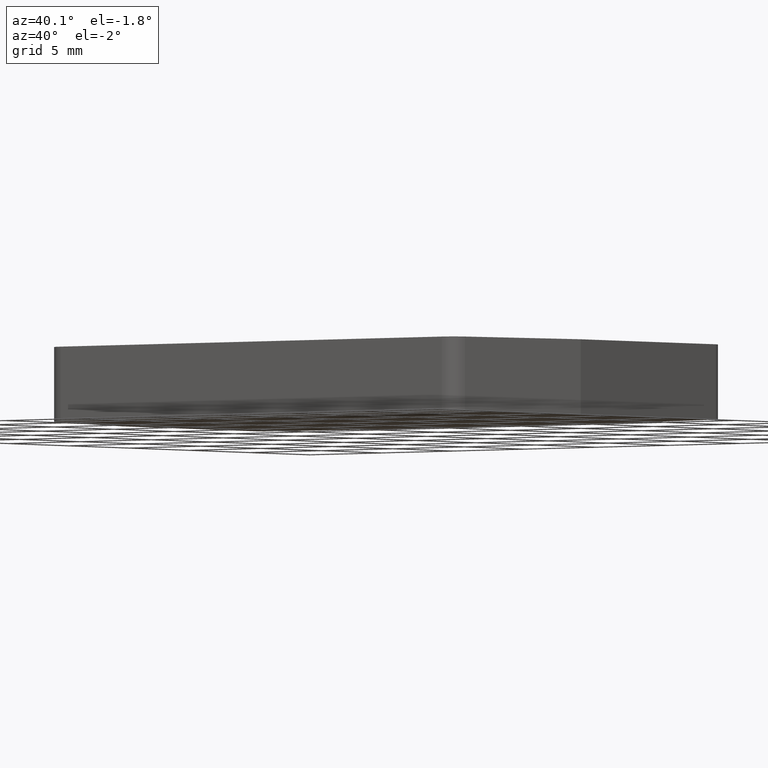
[diagram: clean part render]
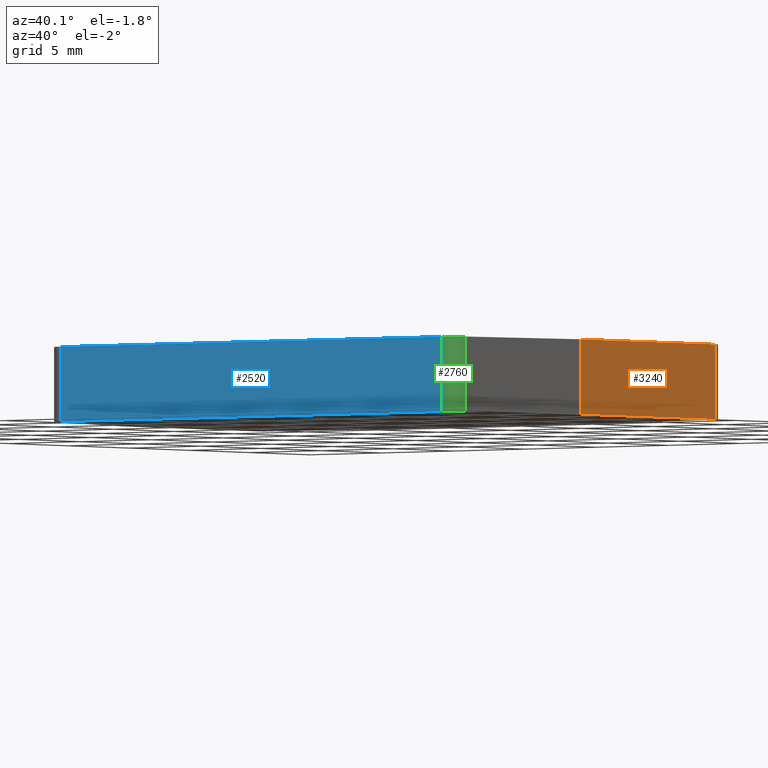
[diagram: same view with three faces highlighted in distinct colors, each labeled with its STEP entity id]
A machine part, auxiliary view with three faces highlighted in distinct colors.
Their STEP definitions:

[orange] entity #3240 — the highlighted planar face has unit normal (1, 0, 0).
#870=CARTESIAN_POINT('',(-35.3523277467458,8.31931566140769,0.));
#880=VERTEX_POINT('',#870);
#910=CARTESIAN_POINT('',(-35.3523277467458,19.5014747753878,0.));
#920=DIRECTION('',(0.,-1.,0.));
#930=VECTOR('',#920,1.);
#940=LINE('',#910,#930);
#950=CARTESIAN_POINT('',(-35.3523277467458,19.5014747753878,0.));
#960=VERTEX_POINT('',#950);
#970=EDGE_CURVE('',#960,#880,#940,.T.);
#1260=CARTESIAN_POINT('',(-35.3523277467458,19.5014747753878,4.));
#1270=VERTEX_POINT('',#1260);
#1320=CARTESIAN_POINT('',(-35.3523277467458,19.5014747753878,4.));
#1330=DIRECTION('',(0.,-1.,0.));
#1340=VECTOR('',#1330,1.);
#1350=LINE('',#1320,#1340);
#1360=CARTESIAN_POINT('',(-35.3523277467458,8.31931566140769,4.));
#1370=VERTEX_POINT('',#1360);
#1380=EDGE_CURVE('',#1270,#1370,#1350,.T.);
#2910=CARTESIAN_POINT('',(-35.3523277467458,8.31931566140769,0.));
#2920=DIRECTION('',(0.,0.,1.));
#2930=VECTOR('',#2920,1.);
#2940=LINE('',#2910,#2930);
#2950=EDGE_CURVE('',#880,#1370,#2940,.T.);
#3080=CARTESIAN_POINT('',(-35.3523277467458,19.5014747753878,0.));
#3090=DIRECTION('',(1.,0.,0.));
#3100=DIRECTION('',(0.,-1.,0.));
#3110=AXIS2_PLACEMENT_3D('',#3080,#3090,#3100);
#3120=PLANE('',#3110);
#3130=ORIENTED_EDGE('',*,*,#2950,.F.);
#3140=ORIENTED_EDGE('',*,*,#1380,.T.);
#3150=CARTESIAN_POINT('',(-35.3523277467458,19.5014747753878,0.));
#3160=DIRECTION('',(0.,0.,1.));
#3170=VECTOR('',#3160,1.);
#3180=LINE('',#3150,#3170);
#3190=EDGE_CURVE('',#960,#1270,#3180,.T.);
#3200=ORIENTED_EDGE('',*,*,#3190,.T.);
#3210=ORIENTED_EDGE('',*,*,#970,.F.);
#3220=EDGE_LOOP('',(#3210,#3200,#3140,#3130));
#3230=FACE_OUTER_BOUND('',#3220,.T.);
#3240=ADVANCED_FACE('',(#3230),#3120,.T.);

[blue] entity #2520 — the highlighted planar face has unit normal (-0, -1, -0).
#620=CARTESIAN_POINT('',(-64.6406858437394,0.0193156614077168,0.));
#630=VERTEX_POINT('',#620);
#660=CARTESIAN_POINT('',(-64.6406858437394,0.0193156614077168,0.));
#670=DIRECTION('',(1.,0.,0.));
#680=VECTOR('',#670,1.);
#690=LINE('',#660,#680);
#700=CARTESIAN_POINT('',(-38.063969649756,0.0193156614077168,0.));
#710=VERTEX_POINT('',#700);
#720=EDGE_CURVE('',#630,#710,#690,.T.);
#1530=CARTESIAN_POINT('',(-38.063969649756,0.0193156614077168,4.));
#1540=VERTEX_POINT('',#1530);
#1570=CARTESIAN_POINT('',(-64.6406858437394,0.0193156614077168,4.));
#1580=DIRECTION('',(1.,0.,0.));
#1590=VECTOR('',#1580,1.);
#1600=LINE('',#1570,#1590);
#1610=CARTESIAN_POINT('',(-64.6406858437394,0.0193156614077168,4.));
#1620=VERTEX_POINT('',#1610);
#1630=EDGE_CURVE('',#1620,#1540,#1600,.T.);
#2310=CARTESIAN_POINT('',(-38.063969649756,0.0193156614077168,0.));
#2320=DIRECTION('',(-0.,-1.,-0.));
#2330=DIRECTION('',(-1.,0.,0.));
#2340=AXIS2_PLACEMENT_3D('',#2310,#2320,#2330);
#2350=PLANE('',#2340);
#2360=CARTESIAN_POINT('',(-64.6406858437394,0.0193156614077168,0.));
#2370=DIRECTION('',(0.,0.,1.));
#2380=VECTOR('',#2370,1.);
#2390=LINE('',#2360,#2380);
#2400=EDGE_CURVE('',#630,#1620,#2390,.T.);
#2410=ORIENTED_EDGE('',*,*,#2400,.F.);
#2420=ORIENTED_EDGE('',*,*,#1630,.F.);
#2430=CARTESIAN_POINT('',(-38.063969649756,0.0193156614077168,0.));
#2440=DIRECTION('',(0.,0.,1.));
#2450=VECTOR('',#2440,1.);
#2460=LINE('',#2430,#2450);
#2470=EDGE_CURVE('',#710,#1540,#2460,.T.);
#2480=ORIENTED_EDGE('',*,*,#2470,.T.);
#2490=ORIENTED_EDGE('',*,*,#720,.T.);
#2500=EDGE_LOOP('',(#2490,#2480,#2420,#2410));
#2510=FACE_OUTER_BOUND('',#2500,.T.);
#2520=ADVANCED_FACE('',(#2510),#2350,.T.);

[green] entity #2760 — the highlighted cylindrical surface (edge-blend (fillet) strip) has radius 1 mm, axis along (0, 0, 1).
#700=CARTESIAN_POINT('',(-38.063969649756,0.0193156614077168,0.));
#710=VERTEX_POINT('',#700);
#740=CARTESIAN_POINT('',(-38.063969649756,1.01931566140772,0.));
#750=DIRECTION('',(0.,0.,1.));
#760=DIRECTION('',(1.,0.,0.));
#770=AXIS2_PLACEMENT_3D('',#740,#750,#760);
#780=CIRCLE('',#770,1.);
#790=CARTESIAN_POINT('',(-37.0895995849707,0.794364607063827,0.));
#800=VERTEX_POINT('',#790);
#810=EDGE_CURVE('',#710,#800,#780,.T.);
#1440=CARTESIAN_POINT('',(-37.0895995849707,0.794364607063827,4.));
#1450=VERTEX_POINT('',#1440);
#1480=CARTESIAN_POINT('',(-38.063969649756,1.01931566140772,4.));
#1490=DIRECTION('',(0.,0.,1.));
#1500=DIRECTION('',(1.,0.,0.));
#1510=AXIS2_PLACEMENT_3D('',#1480,#1490,#1500);
#1520=CIRCLE('',#1510,1.);
#1530=CARTESIAN_POINT('',(-38.063969649756,0.0193156614077168,4.));
#1540=VERTEX_POINT('',#1530);
#1550=EDGE_CURVE('',#1540,#1450,#1520,.T.);
#2430=CARTESIAN_POINT('',(-38.063969649756,0.0193156614077168,0.));
#2440=DIRECTION('',(0.,0.,1.));
#2450=VECTOR('',#2440,1.);
#2460=LINE('',#2430,#2450);
#2470=EDGE_CURVE('',#710,#1540,#2460,.T.);
#2600=CARTESIAN_POINT('',(-38.063969649756,1.01931566140772,0.));
#2610=DIRECTION('',(0.,0.,1.));
#2620=DIRECTION('',(1.,0.,0.));
#2630=AXIS2_PLACEMENT_3D('',#2600,#2610,#2620);
#2640=CYLINDRICAL_SURFACE('',#2630,1.);
#2650=ORIENTED_EDGE('',*,*,#2470,.F.);
#2660=ORIENTED_EDGE('',*,*,#1550,.F.);
#2670=CARTESIAN_POINT('',(-37.0895995849707,0.794364607063827,0.));
#2680=DIRECTION('',(0.,0.,1.));
#2690=VECTOR('',#2680,1.);
#2700=LINE('',#2670,#2690);
#2710=EDGE_CURVE('',#800,#1450,#2700,.T.);
#2720=ORIENTED_EDGE('',*,*,#2710,.T.);
#2730=ORIENTED_EDGE('',*,*,#810,.T.);
#2740=EDGE_LOOP('',(#2730,#2720,#2660,#2650));
#2750=FACE_OUTER_BOUND('',#2740,.T.);
#2760=ADVANCED_FACE('',(#2750),#2640,.T.);